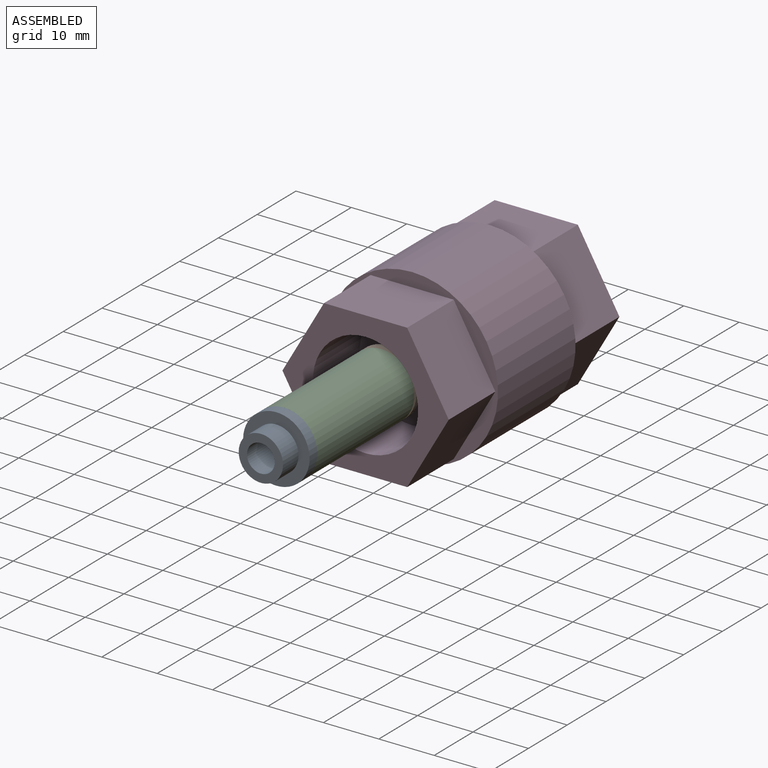
[diagram: assembled view]
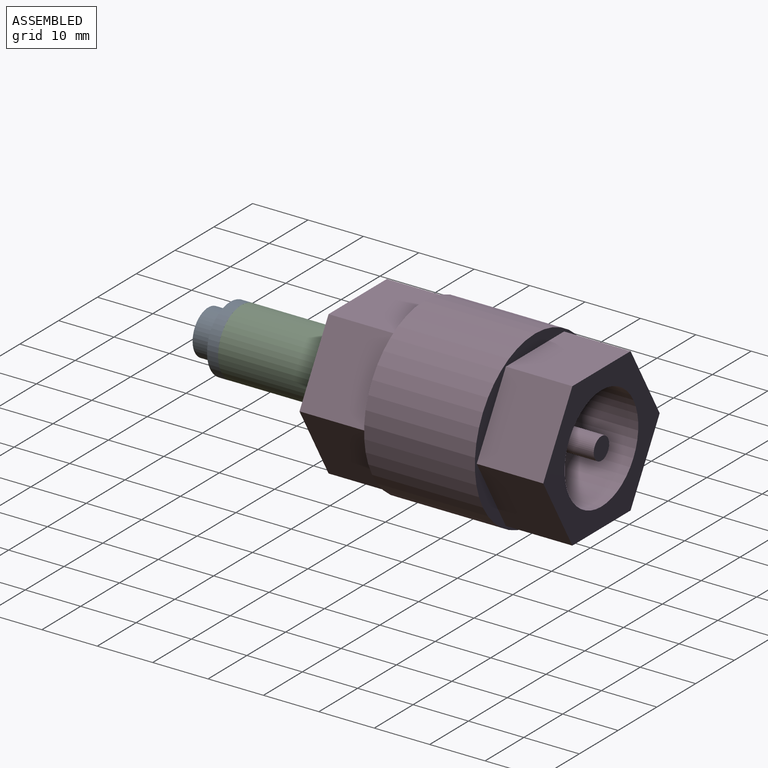
[diagram: assembled view, second angle]
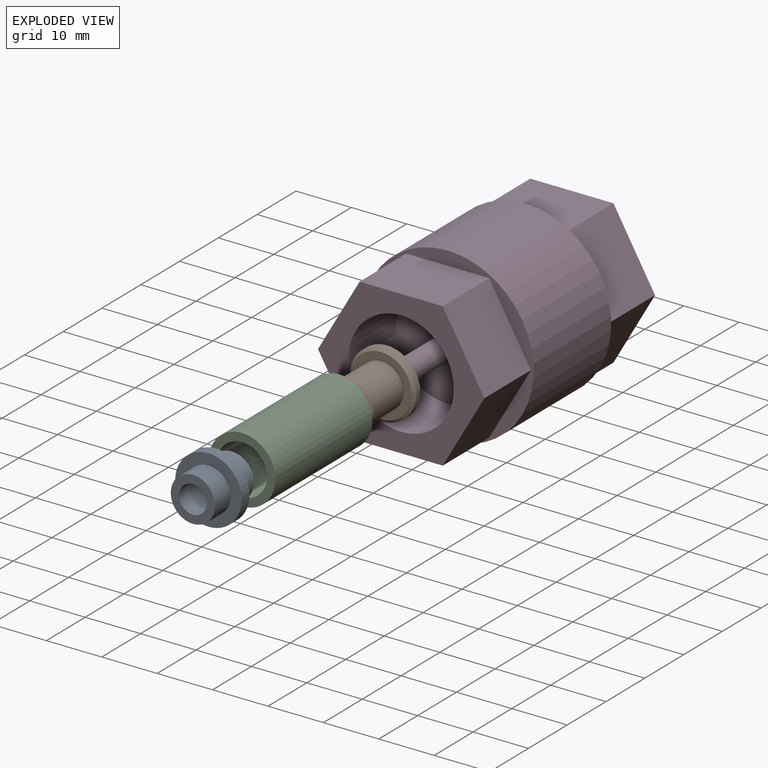
[diagram: exploded view]
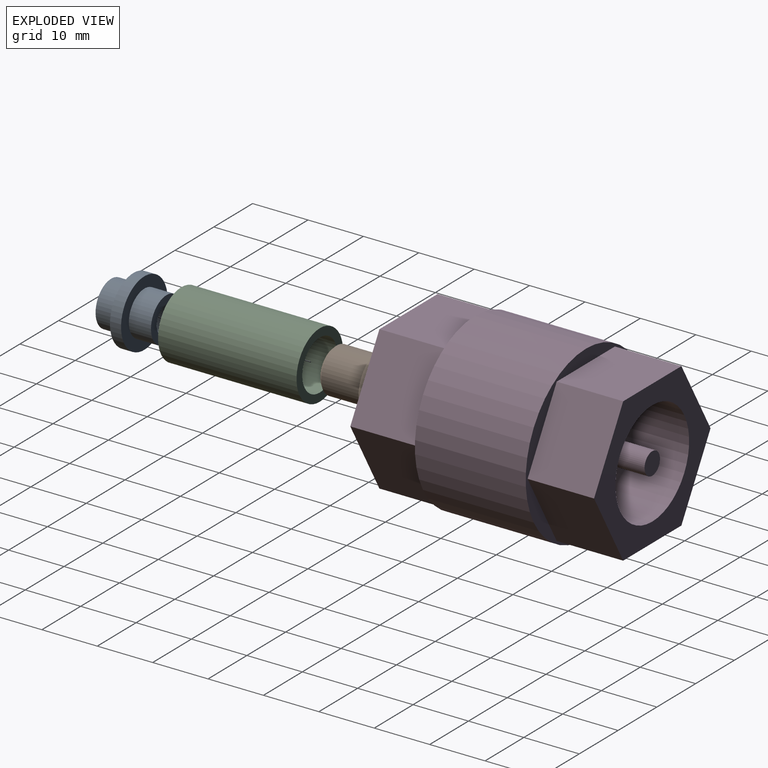
[diagram: exploded view, second angle]
ASSEMBLY  parts=4 mates=3
PART A: 8 faces, bbox 10x12x12 mm
  f0: cylinder r=2.5mm len=10mm, axis (-1,0,0), area 157.1mm2, adj f1,f7
  f1: plane 8x8mm, normal (1,0,0), area 30.6mm2, adj f0,f2
  f2: cylinder r=4mm len=8mm, axis (-1,0,0), area 100.5mm2, adj f1,f3
  f3: plane 12x12mm, normal (1,0,0), area 62.8mm2, adj f2,f4
  f4: cylinder r=6mm len=12mm, axis (-1,0,0), area 75.4mm2, adj f3,f5
  f5: plane 12x12mm, normal (-1,0,0), area 62.8mm2, adj f4,f6
  f6: cylinder r=4mm len=8mm, axis (-1,0,0), area 100.5mm2, adj f5,f7
  f7: plane 8x8mm, normal (-1,0,0), area 30.6mm2, adj f0,f6
PART B: 11 faces, bbox 12x12x10.3 mm
  f0: cone r=2.3mm half-angle=45deg, axis (0,0,-1), area 23.5mm2, adj f1
  f1: cylinder r=2.3mm len=5.5mm, axis (0,0,-1), area 79.5mm2, adj f0,f9
  f2: plane 11x11mm, normal (0,0,-1), area 70.4mm2, adj f9,f10
  f3: cylinder r=6mm len=12mm, axis (0,0,-1), area 37.7mm2, adj f7,f10
  f4: plane 11x11mm, normal (0,0,1), area 44.8mm2, adj f5,f7
  f5: cylinder r=4mm len=8mm, axis (0,0,-1), area 196mm2, adj f4,f8
  f6: plane 7x7mm, normal (0,0,1), area 38.5mm2, adj f8
  f7: cone r=6mm half-angle=45deg, axis (0,0,-1), area 25.5mm2, adj f3,f4
  f8: cone r=4mm half-angle=45deg, axis (0,0,-1), area 16.7mm2, adj f5,f6
  f9: cone r=2.3mm half-angle=45deg, axis (0,0,-1), area 11.3mm2, adj f1,f2
  f10: cone r=5.5mm half-angle=45deg, axis (0,0,1), area 25.5mm2, adj f2,f3
PART C: 4 faces, bbox 12x25x12 mm
  f0: cylinder r=4.5mm len=25mm, axis (0,1,0), area 706.9mm2, adj f2,f3
  f1: cylinder r=6mm len=25mm, axis (0,1,0), area 942.5mm2, adj f2,f3
  f2: plane 12x12mm, normal (0,-1,0), area 49.5mm2, adj f0,f1
  f3: plane 12x12mm, normal (0,1,0), area 49.5mm2, adj f0,f1
PART D: 25 faces, bbox 31x44x31 mm
  f0: plane 31x31mm, normal (0,-1,0), area 169.3mm2, adj f1,f3,f4,f5,f6,f7,f8
  f1: cylinder r=15.5mm len=31mm, axis (0,1,0), area 1947.8mm2, adj f0,f2
  f2: plane 31x31mm, normal (0,1,0), area 169.3mm2, adj f1,f10,f11,f12,f13,f14,f15
  f3: plane 15.01x12mm, normal (0,0,1), area 180.1mm2, adj f0,f4,f8,f9
  f4: plane 13x12mm, normal (-0.87,0,0.5), area 180.1mm2, adj f0,f3,f5,f9
  f5: plane 13x12mm, normal (-0.87,0,-0.5), area 180.1mm2, adj f0,f4,f6,f9
  f6: plane 15.01x12mm, normal (0,0,-1), area 180.1mm2, adj f0,f5,f7,f9
  f7: plane 13x12mm, normal (0.87,0,-0.5), area 180.1mm2, adj f0,f6,f8,f9
  f8: plane 13x12mm, normal (0.87,0,0.5), area 180.1mm2, adj f0,f3,f7,f9
  f9: plane 30.02x26mm, normal (0,-1,0), area 301.9mm2, adj f3,f4,f5,f6,f7,f8,f19
  f10: plane 13x12mm, normal (-0.87,0,-0.5), area 180.1mm2, adj f2,f11,f15,f16
  f11: plane 13x12mm, normal (-0.87,0,0.5), area 180.1mm2, adj f2,f10,f12,f16
  f12: plane 15.01x12mm, normal (0,0,1), area 180.1mm2, adj f2,f11,f13,f16
  f13: plane 13x12mm, normal (0.87,0,0.5), area 180.1mm2, adj f2,f12,f14,f16
  f14: plane 13x12mm, normal (0.87,0,-0.5), area 180.1mm2, adj f2,f13,f15,f16
  f15: plane 15.01x12mm, normal (0,0,-1), area 180.1mm2, adj f2,f10,f14,f16
  f16: plane 30.02x26mm, normal (0,1,0), area 301.9mm2, adj f10,f11,f12,f13,f14,f15,f17
  f17: cylinder r=9.5mm len=19mm, axis (0,1,0), area 716.3mm2, adj f16,f18
  f18: plane 19x19mm, normal (0,1,0), area 271mm2, adj f17,f23
  f19: cylinder r=9.5mm len=19mm, axis (0,-1,0), area 716.3mm2, adj f9,f20
  f20: plane 19x19mm, normal (0,-1,0), area 271mm2, adj f19,f21
  f21: cylinder r=2mm len=12mm, axis (0,1,0), area 150.8mm2, adj f20,f22
  f22: plane 4x4mm, normal (0,-1,0), area 12.6mm2, adj f21
  f23: cylinder r=2mm len=12mm, axis (0,-1,0), area 150.8mm2, adj f18,f24
  f24: plane 4x4mm, normal (0,1,0), area 12.6mm2, adj f23
PLACE A rot(axis=(-0.58,-0.58,0.58),120deg) t=(0,-44,0)mm
PLACE B rot(axis=(1,0,0),90deg) t=(0,-16,0)mm
PLACE C rot(axis=(1,0,0),180deg) t=(0,-43,0)mm
PLACE D at identity
MATE cylindrical A.f0 <-> C.f1  axis (0,1,0) through (0,-43,0)mm
MATE cylindrical C.f0 <-> B.f0  axis (0,1,0) through (0,-18,0)mm
MATE slider B.f0 <-> D.f21  axis (0,1,0) through (0,-22,0)mm
